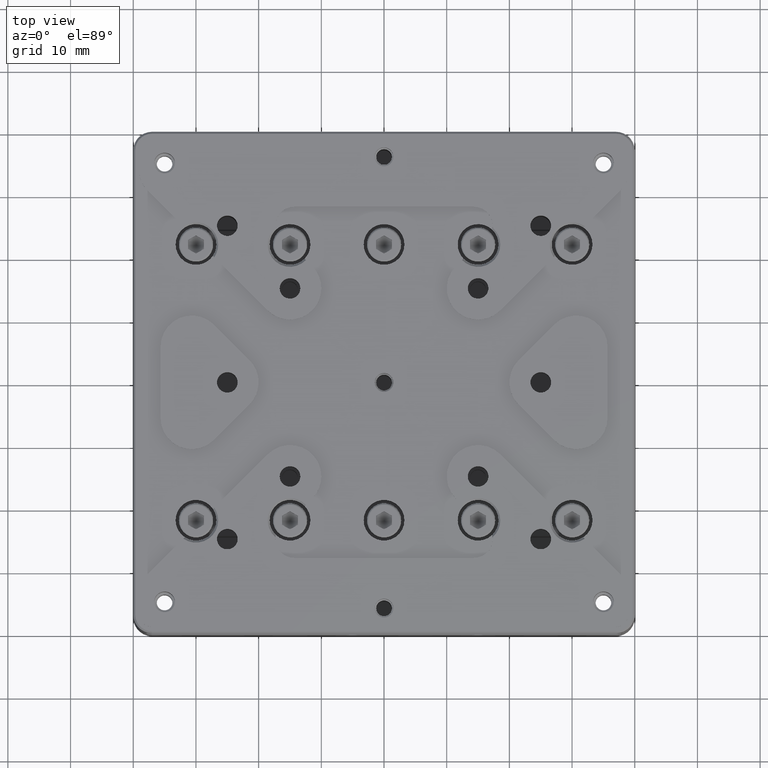
[diagram: clean part render]
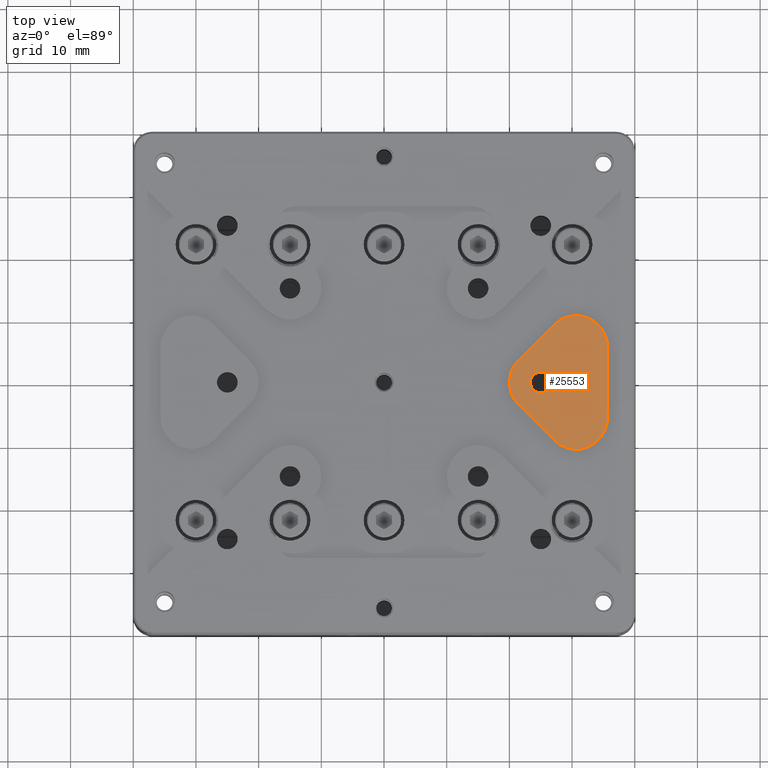
[diagram: same view with one face highlighted and labeled with its STEP entity id]
A machine part, top view. The second image highlights one B-rep face of the part: STEP entity #25553.
In plain terms, the highlighted planar face has unit normal (0, 0, 1).
Its self-contained STEP definition (entity closure, byte-faithful):
#77 = FACE_BOUND ( 'NONE', #4163, .T. ) ;
#199 = VERTEX_POINT ( 'NONE', #23015 ) ;
#469 = VERTEX_POINT ( 'NONE', #24432 ) ;
#824 = CIRCLE ( 'NONE', #17244, 5.000000000000000888 ) ;
#1329 = ORIENTED_EDGE ( 'NONE', *, *, #10011, .T. ) ;
#2036 = CARTESIAN_POINT ( 'NONE',  ( 35.65685424949000293, -5.656854249492000442, 13.50000000000000000 ) ) ;
#2301 = ORIENTED_EDGE ( 'NONE', *, *, #11023, .T. ) ;
#2919 = ORIENTED_EDGE ( 'NONE', *, *, #25791, .T. ) ;
#3025 = EDGE_CURVE ( 'NONE', #3054, #11892, #8467, .T. ) ;
#3054 = VERTEX_POINT ( 'NONE', #9257 ) ;
#3696 = CARTESIAN_POINT ( 'NONE',  ( 27.12132034355945365, 9.192388155423438789, 13.50000000000000000 ) ) ;
#4163 = EDGE_LOOP ( 'NONE', ( #27483, #2919 ) ) ;
#4237 = DIRECTION ( 'NONE',  ( 1.000000000000000000, 0.000000000000000000, 0.000000000000000000 ) ) ;
#4340 = VECTOR ( 'NONE', #8077, 1000.000000000000000 ) ;
#4477 = FACE_OUTER_BOUND ( 'NONE', #6000, .T. ) ;
#4522 = CIRCLE ( 'NONE', #20922, 1.649999999999998579 ) ;
#4636 = CARTESIAN_POINT ( 'NONE',  ( -40.00000000000000000, 40.00000000000000000, 13.50000000000000000 ) ) ;
#4989 = AXIS2_PLACEMENT_3D ( 'NONE', #28923, #29070, #4237 ) ;
#4994 = CARTESIAN_POINT ( 'NONE',  ( 30.65685424948999938, -5.656854249492000442, 13.50000000000000000 ) ) ;
#5096 = EDGE_CURVE ( 'NONE', #8923, #21671, #824, .T. ) ;
#5336 = CARTESIAN_POINT ( 'NONE',  ( 21.46446609406829964, -3.535533905932554788, 13.50000000000000000 ) ) ;
#5733 = LINE ( 'NONE', #21723, #4340 ) ;
#6000 = EDGE_LOOP ( 'NONE', ( #19578, #12099, #1329, #24894, #2301, #8890 ) ) ;
#7440 = VERTEX_POINT ( 'NONE', #3696 ) ;
#8031 = CARTESIAN_POINT ( 'NONE',  ( 35.65685424949000293, 40.00000000000000000, 13.50000000000000000 ) ) ;
#8077 = DIRECTION ( 'NONE',  ( -0.7071067811864220065, -0.7071067811866730279, 0.000000000000000000 ) ) ;
#8415 = VECTOR ( 'NONE', #24176, 1000.000000000000000 ) ;
#8467 = CIRCLE ( 'NONE', #12201, 5.000000000000000888 ) ;
#8724 = AXIS2_PLACEMENT_3D ( 'NONE', #15141, #10725, #12637 ) ;
#8764 = DIRECTION ( 'NONE',  ( 0.000000000000000000, 0.000000000000000000, 1.000000000000000000 ) ) ;
#8890 = ORIENTED_EDGE ( 'NONE', *, *, #15416, .T. ) ;
#8923 = VERTEX_POINT ( 'NONE', #22757 ) ;
#9035 = PLANE ( 'NONE',  #27514 ) ;
#9191 = CIRCLE ( 'NONE', #8724, 1.649999999999998579 ) ;
#9257 = CARTESIAN_POINT ( 'NONE',  ( 27.12132034355829902, -9.192388155424559670, 13.50000000000000000 ) ) ;
#9571 = CARTESIAN_POINT ( 'NONE',  ( 21.46446609407000139, -3.535533905933004650, 13.50000000000000000 ) ) ;
#10011 = EDGE_CURVE ( 'NONE', #21671, #3054, #18098, .T. ) ;
#10522 = DIRECTION ( 'NONE',  ( 1.000000000000000000, 0.000000000000000000, 0.000000000000000000 ) ) ;
#10674 = CARTESIAN_POINT ( 'NONE',  ( 25.00000000000000000, 0.000000000000000000, 13.50000000000000000 ) ) ;
#10725 = DIRECTION ( 'NONE',  ( 0.000000000000000000, 0.000000000000000000, -1.000000000000000000 ) ) ;
#11023 = EDGE_CURVE ( 'NONE', #11892, #26080, #19342, .T. ) ;
#11323 = DIRECTION ( 'NONE',  ( 1.000000000000000000, 0.000000000000000000, 0.000000000000000000 ) ) ;
#11892 = VERTEX_POINT ( 'NONE', #2036 ) ;
#12099 = ORIENTED_EDGE ( 'NONE', *, *, #5096, .T. ) ;
#12174 = VECTOR ( 'NONE', #14139, 1000.000000000000000 ) ;
#12201 = AXIS2_PLACEMENT_3D ( 'NONE', #4994, #17937, #11323 ) ;
#12637 = DIRECTION ( 'NONE',  ( 1.000000000000000000, 0.000000000000000000, 0.000000000000000000 ) ) ;
#12829 = DIRECTION ( 'NONE',  ( 1.000000000000000000, 0.000000000000000000, 0.000000000000000000 ) ) ;
#13597 = DIRECTION ( 'NONE',  ( 0.000000000000000000, 0.000000000000000000, 1.000000000000000000 ) ) ;
#14139 = DIRECTION ( 'NONE',  ( 0.7071067811864220065, -0.7071067811866730279, 0.000000000000000000 ) ) ;
#14925 = EDGE_CURVE ( 'NONE', #469, #199, #9191, .T. ) ;
#15141 = CARTESIAN_POINT ( 'NONE',  ( 25.00000000000000000, 0.000000000000000000, 13.50000000000000000 ) ) ;
#15416 = EDGE_CURVE ( 'NONE', #26080, #7440, #22348, .T. ) ;
#17244 = AXIS2_PLACEMENT_3D ( 'NONE', #10674, #8764, #10522 ) ;
#17937 = DIRECTION ( 'NONE',  ( 0.000000000000000000, 0.000000000000000000, 1.000000000000000000 ) ) ;
#18098 = LINE ( 'NONE', #9571, #12174 ) ;
#19012 = CARTESIAN_POINT ( 'NONE',  ( 35.65685424949000293, 5.656854249492000442, 13.50000000000000000 ) ) ;
#19342 = LINE ( 'NONE', #8031, #8415 ) ;
#19578 = ORIENTED_EDGE ( 'NONE', *, *, #27032, .T. ) ;
#20342 = DIRECTION ( 'NONE',  ( 1.000000000000000000, 0.000000000000000000, 0.000000000000000000 ) ) ;
#20922 = AXIS2_PLACEMENT_3D ( 'NONE', #28425, #23565, #12829 ) ;
#21671 = VERTEX_POINT ( 'NONE', #5336 ) ;
#21723 = CARTESIAN_POINT ( 'NONE',  ( 27.12132034356000077, 9.192388155425000207, 13.50000000000000000 ) ) ;
#22348 = CIRCLE ( 'NONE', #4989, 5.000000000000000888 ) ;
#22757 = CARTESIAN_POINT ( 'NONE',  ( 21.46446609406829964, 3.535533905932554788, 13.50000000000000000 ) ) ;
#23015 = CARTESIAN_POINT ( 'NONE',  ( 23.34999999999999787, 2.020667218593134974E-16, 13.50000000000000000 ) ) ;
#23565 = DIRECTION ( 'NONE',  ( 0.000000000000000000, 0.000000000000000000, -1.000000000000000000 ) ) ;
#24176 = DIRECTION ( 'NONE',  ( 0.000000000000000000, 1.000000000000000000, 0.000000000000000000 ) ) ;
#24432 = CARTESIAN_POINT ( 'NONE',  ( 26.64999999999999858, 0.000000000000000000, 13.50000000000000000 ) ) ;
#24894 = ORIENTED_EDGE ( 'NONE', *, *, #3025, .T. ) ;
#25553 = ADVANCED_FACE ( 'NONE', ( #4477, #77 ), #9035, .T. ) ;
#25791 = EDGE_CURVE ( 'NONE', #199, #469, #4522, .T. ) ;
#26080 = VERTEX_POINT ( 'NONE', #19012 ) ;
#27032 = EDGE_CURVE ( 'NONE', #7440, #8923, #5733, .T. ) ;
#27483 = ORIENTED_EDGE ( 'NONE', *, *, #14925, .T. ) ;
#27514 = AXIS2_PLACEMENT_3D ( 'NONE', #4636, #13597, #20342 ) ;
#28425 = CARTESIAN_POINT ( 'NONE',  ( 25.00000000000000000, 0.000000000000000000, 13.50000000000000000 ) ) ;
#28923 = CARTESIAN_POINT ( 'NONE',  ( 30.65685424948999938, 5.656854249492000442, 13.50000000000000000 ) ) ;
#29070 = DIRECTION ( 'NONE',  ( 0.000000000000000000, 0.000000000000000000, 1.000000000000000000 ) ) ;